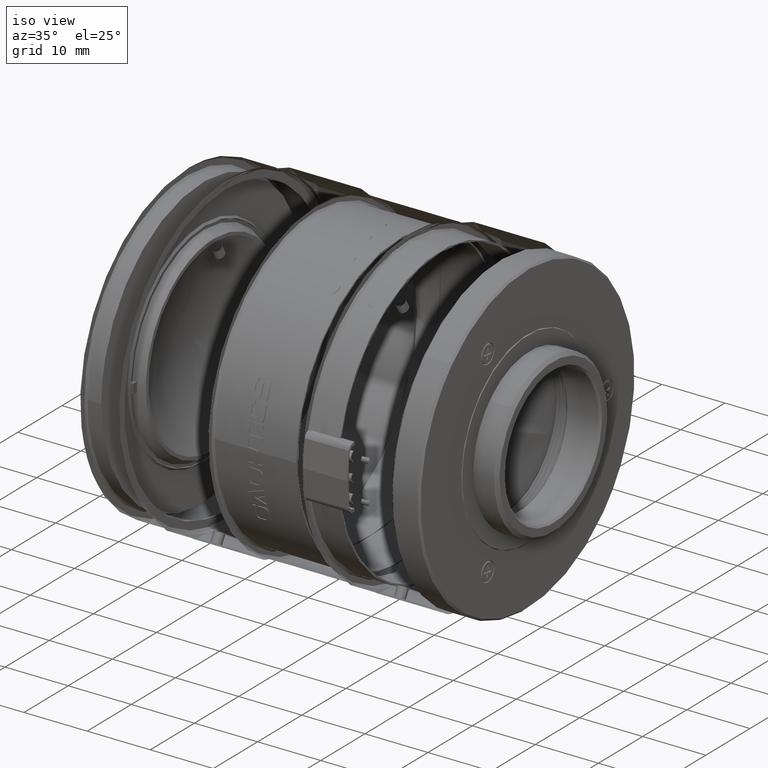
[diagram: clean part render]
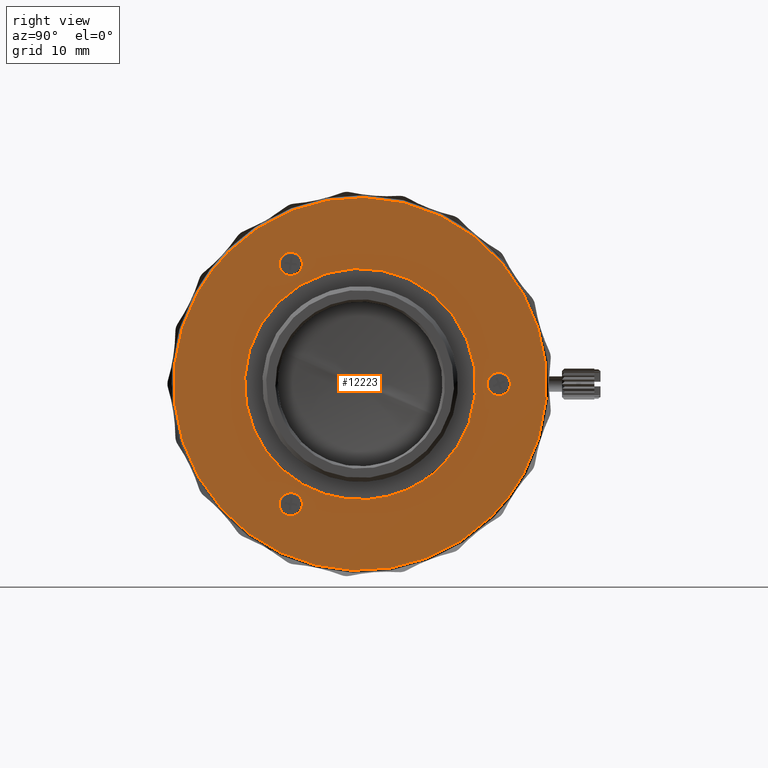
[diagram: tour spotlight — one face highlighted and labeled with its STEP entity id]
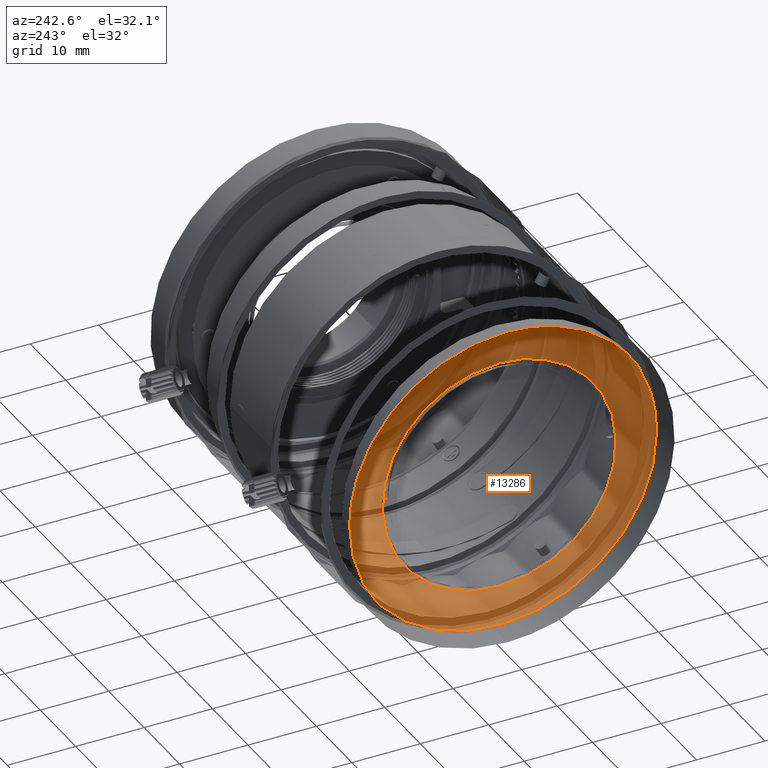
[diagram: tour spotlight — one face highlighted and labeled with its STEP entity id]
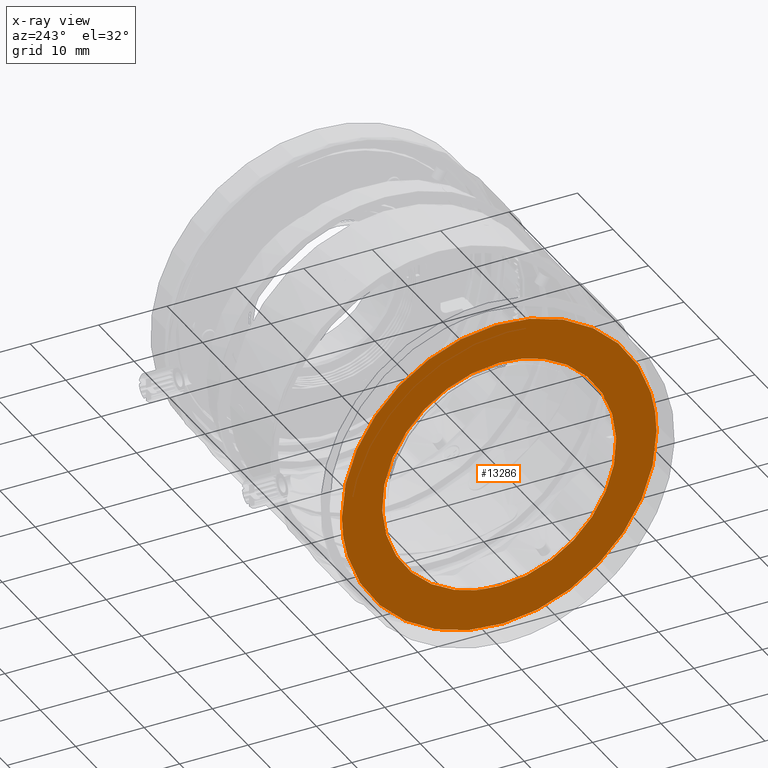
[diagram: x-ray of the same camera — body ghosted, this tour face saturated]
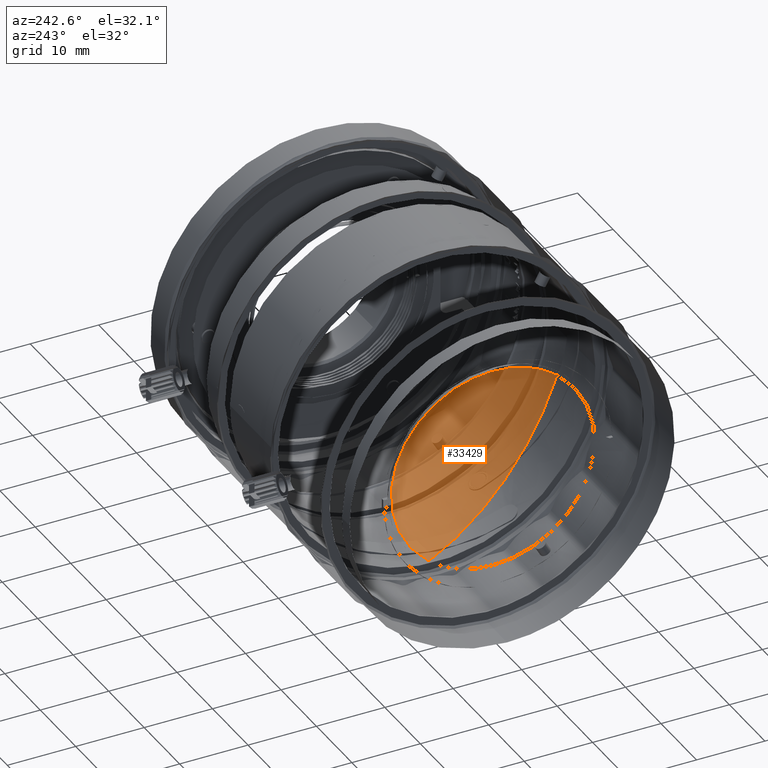
[diagram: tour spotlight — one face highlighted and labeled with its STEP entity id]
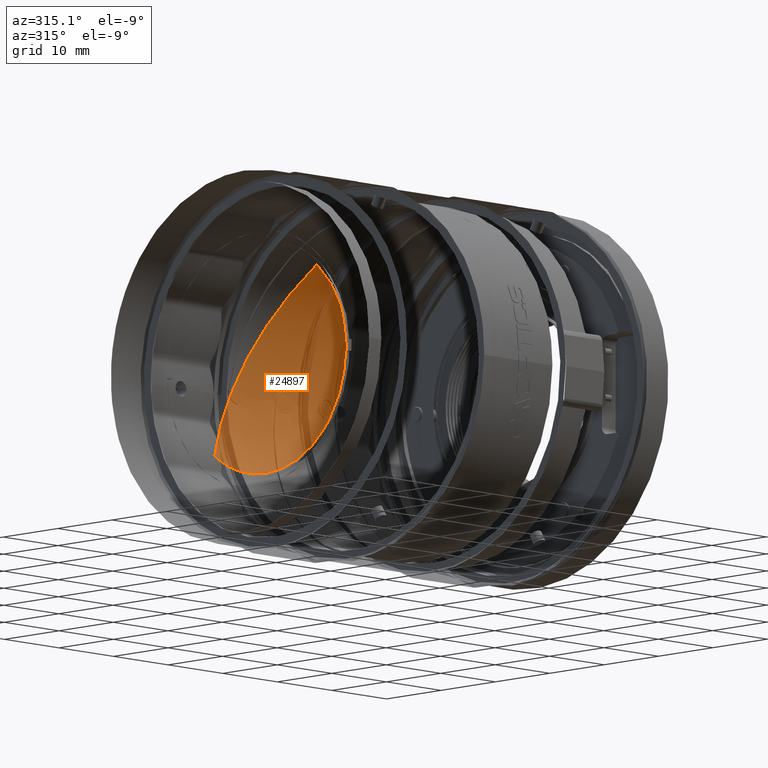
[diagram: tour spotlight — one face highlighted and labeled with its STEP entity id]
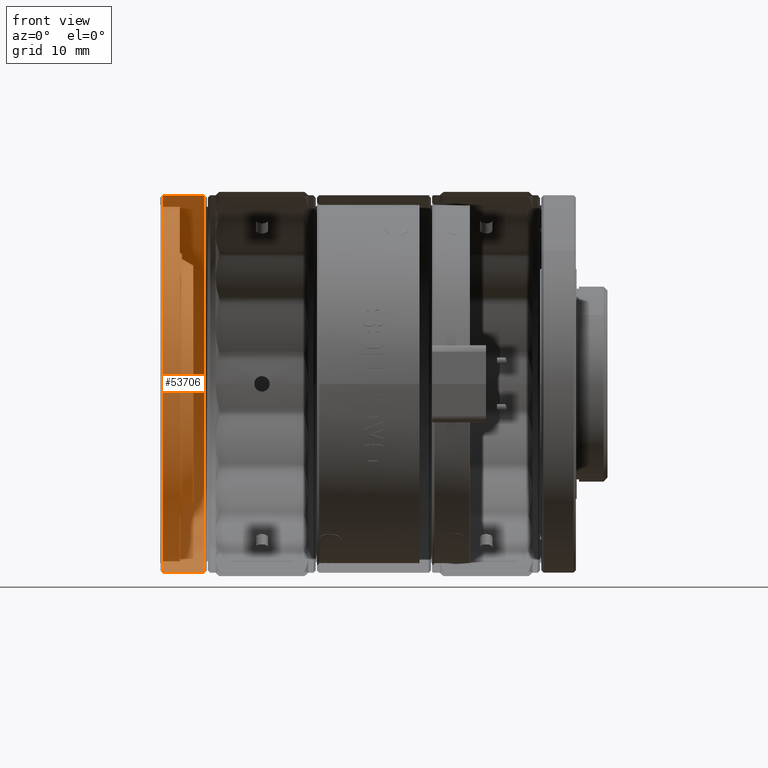
[diagram: tour spotlight — one face highlighted and labeled with its STEP entity id]
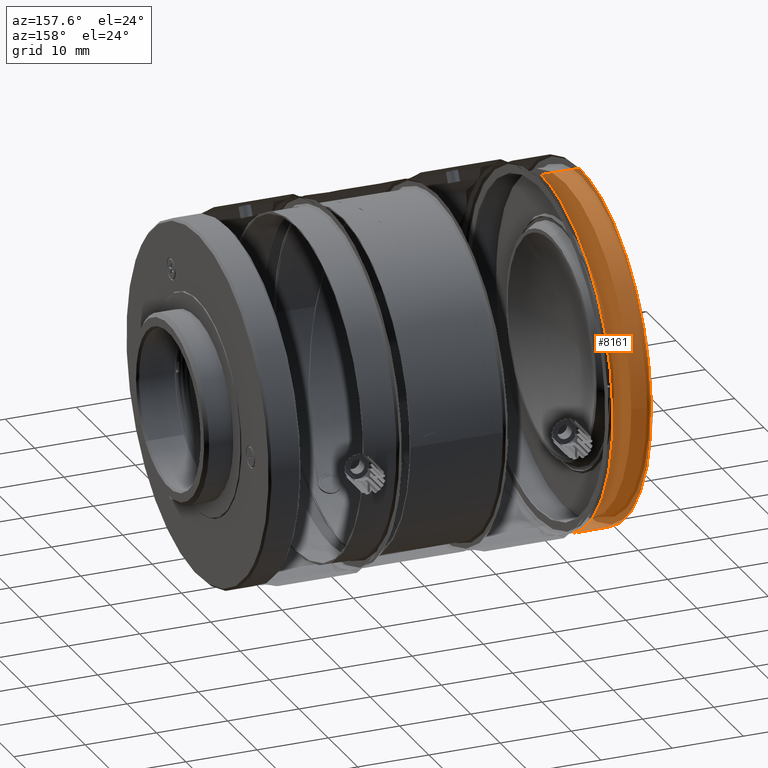
[diagram: tour spotlight — one face highlighted and labeled with its STEP entity id]
A machine part: a face-by-face anatomy tour. The part has 1184 B-rep faces; the first image is the clean iso view, then the 6 largest visible faces are spotlighted one at a time (largest first), each with its STEP entity span.

Face 1 — right view, entity #12223. In plain terms, the highlighted face is a freeform B-spline surface patch.
Definition (entity closure, byte-faithful):
#1243 = CARTESIAN_POINT ( 'NONE',  ( 47.75000000000000711, 14.61019429577712181, -3.924759922729253780 ) ) ;
#1432 = ORIENTED_EDGE ( 'NONE', *, *, #41526, .F. ) ;
#1555 = EDGE_CURVE ( 'NONE', #35013, #21153, #27306, .T. ) ;
#1583 = ORIENTED_EDGE ( 'NONE', *, *, #36207, .F. ) ;
#1727 =( BOUNDED_CURVE ( )  B_SPLINE_CURVE ( 3, ( #22337, #40267, #58141, #27037, #45258, #14086, #30877 ),
 .UNSPECIFIED., .F., .F. ) 
 B_SPLINE_CURVE_WITH_KNOTS ( ( 4, 3, 4 ),
 ( -3.141592653589795336, -1.570796326794897668, 0.0000000000000000000 ),
 .UNSPECIFIED. ) 
 CURVE ( )  GEOMETRIC_REPRESENTATION_ITEM ( )  RATIONAL_B_SPLINE_CURVE ( ( 1.000000000000000000, 0.8047378540760217192, 0.8047378540760217192, 1.000000000000000000, 0.8047378540760217192, 0.8047378540760217192, 1.000000000000000000 ) ) 
 REPRESENTATION_ITEM ( '' )  );
#3949 = FACE_BOUND ( 'NONE', #22792, .T. ) ;
#4544 = B_SPLINE_SURFACE_WITH_KNOTS ( 'NONE', 1, 1, ( 
 ( #48898, #8366 ),
 ( #52710, #8082 ) ),
 .UNSPECIFIED., .F., .F., .F.,
 ( 2, 2 ),
 ( 2, 2 ),
 ( 0.0000000000000000000, 1.000000000000000000 ),
 ( 0.0000000000000000000, 1.000000000000000000 ),
 .UNSPECIFIED. ) ;
#4717 = EDGE_LOOP ( 'NONE', ( #12887, #21499 ) ) ;
#5855 = CARTESIAN_POINT ( 'NONE',  ( 47.75000000287850099, -7.939339831255829871, -14.52779710084869969 ) ) ;
#6170 = CARTESIAN_POINT ( 'NONE',  ( 47.75000000000000000, 16.93933982723959986, -1.060660165267623967 ) ) ;
#6230 = EDGE_LOOP ( 'NONE', ( #52181, #28512 ) ) ;
#6245 = CARTESIAN_POINT ( 'NONE',  ( 47.75000000000001421, 14.99999998148445179, -1.965073948798883974 ) ) ;
#6272 = CARTESIAN_POINT ( 'NONE',  ( 47.75000000000000000, -5.818019501821017236, 14.52779711382101624 ) ) ;
#7948 =( BOUNDED_CURVE ( )  B_SPLINE_CURVE ( 3, ( #46144, #28519, #10308, #19132 ),
 .UNSPECIFIED., .F., .F. ) 
 B_SPLINE_CURVE_WITH_KNOTS ( ( 4, 4 ),
 ( -3.141592653589795336, 0.0000000000000000000 ),
 .UNSPECIFIED. ) 
 CURVE ( )  GEOMETRIC_REPRESENTATION_ITEM ( )  RATIONAL_B_SPLINE_CURVE ( ( 1.000000000000000000, 0.3333333335299311084, 0.3333333335299311084, 1.000000000000000000 ) ) 
 REPRESENTATION_ITEM ( '' )  );
#8082 = CARTESIAN_POINT ( 'NONE',  ( 47.75000000000000000, 0.0000000000000000000, 34.63465582799999254 ) ) ;
#8097 = CARTESIAN_POINT ( 'NONE',  ( 47.75000000000000711, 9.217084539344966743, 11.99611889492478056 ) ) ;
#8366 = CARTESIAN_POINT ( 'NONE',  ( 47.75000000000000000, 34.63465582799999254, 0.0000000000000000000 ) ) ;
#9789 = CARTESIAN_POINT ( 'NONE',  ( 47.74999999135521733, -8.560660171789660211, 17.27043778378966010 ) ) ;
#9820 = CARTESIAN_POINT ( 'NONE',  ( 47.74999999711839394, -7.939339819710950152, 16.64911744222175116 ) ) ;
#10067 = CARTESIAN_POINT ( 'NONE',  ( 47.74999999135521733, -9.439339828555313616, 17.27043778369955973 ) ) ;
#10308 = CARTESIAN_POINT ( 'NONE',  ( 47.74999999999992184, -10.60660171854129885, -31.81980513713768843 ) ) ;
#11427 = EDGE_CURVE ( 'NONE', #50871, #52701, #13908, .T. ) ;
#11721 = VERTEX_POINT ( 'NONE', #26771 ) ;
#12223 = ADVANCED_FACE ( 'NONE', ( #44203, #21305, #3949, #48319, #57668 ), #4544, .F. ) ;
#12887 = ORIENTED_EDGE ( 'NONE', *, *, #14228, .F. ) ;
#12968 = ORIENTED_EDGE ( 'NONE', *, *, #26872, .F. ) ;
#13529 = CARTESIAN_POINT ( 'NONE',  ( 47.75000000000000000, 19.06066016851304923, 1.060660176458955828 ) ) ;
#13883 = CARTESIAN_POINT ( 'NONE',  ( 47.74999999135521733, -10.06066017221754372, 16.64911743978245795 ) ) ;
#13908 = B_SPLINE_CURVE_WITH_KNOTS ( 'NONE', 3,
 ( #21324, #39253, #30712, #17477, #57131, #35415, #30426, #48335, #8097, #28290, #19190, #46493, #32995, #6245, #1243, #37123, #32702, #51473 ),
 .UNSPECIFIED., .F., .F.,
 ( 4, 2, 2, 2, 2, 2, 2, 2, 4 ),
 ( 0.0000000000000000000, 0.3926990816987244171, 0.7853981633974488341, 1.178097245096173307, 1.570796326794897668, 1.963495408493622030, 2.356194490192346613, 2.748893571891070753, 3.141592653589795336 ),
 .UNSPECIFIED. ) ;
#14086 = CARTESIAN_POINT ( 'NONE',  ( 47.75000000863546745, -10.68198051560944073, -16.02779709690029719 ) ) ;
#14202 = CARTESIAN_POINT ( 'NONE',  ( 47.74999999711839394, -10.06066017252928013, 14.52779708895026012 ) ) ;
#14228 = EDGE_CURVE ( 'NONE', #17811, #27340, #24884, .T. ) ;
#14752 = CARTESIAN_POINT ( 'NONE',  ( 47.75000000287850099, -10.06066017252928013, -16.64911744257529946 ) ) ;
#14932 = CARTESIAN_POINT ( 'NONE',  ( 47.75000000000000000, 17.11198409740554993, -17.11198410676480108 ) ) ;
#15054 = CARTESIAN_POINT ( 'NONE',  ( 47.74999999135521733, -10.68198051560944073, 15.14911743909970809 ) ) ;
#16117 = CARTESIAN_POINT ( 'NONE',  ( 47.75000000000000000, 21.18198051355837919, -1.060660171320298328 ) ) ;
#16662 = CARTESIAN_POINT ( 'NONE',  ( 47.74999999999995737, 17.11198410850973062, 17.11198410149027538 ) ) ;
#17477 = CARTESIAN_POINT ( 'NONE',  ( 47.74999999999997868, -3.924759830370170732, 14.61019420341804498 ) ) ;
#17808 = CARTESIAN_POINT ( 'NONE',  ( 47.75000000000000711, -7.088015893773679466, 27.13595231622632298 ) ) ;
#17811 = VERTEX_POINT ( 'NONE', #20431 ) ;
#18647 =( BOUNDED_CURVE ( )  B_SPLINE_CURVE ( 3, ( #14752, #50589, #32112, #23280 ),
 .UNSPECIFIED., .F., .F. ) 
 B_SPLINE_CURVE_WITH_KNOTS ( ( 4, 4 ),
 ( -3.141592653589795336, 0.0000000000000000000 ),
 .UNSPECIFIED. ) 
 CURVE ( )  GEOMETRIC_REPRESENTATION_ITEM ( )  RATIONAL_B_SPLINE_CURVE ( ( 1.000000000000000000, 0.3333333335299307754, 0.3333333335299307754, 1.000000000000000000 ) ) 
 REPRESENTATION_ITEM ( '' )  );
#18798 = CARTESIAN_POINT ( 'NONE',  ( 47.74999999711839394, -7.939339819710950152, 16.64911744222175116 ) ) ;
#19132 = CARTESIAN_POINT ( 'NONE',  ( 47.75000000000000000, 10.60660171481101877, -10.60660172061222184 ) ) ;
#19184 = CARTESIAN_POINT ( 'NONE',  ( 47.74999999711839394, -10.06066017252928013, 14.52779708895026012 ) ) ;
#19190 = CARTESIAN_POINT ( 'NONE',  ( 47.75000000000000711, 13.10619175517281043, 7.555743176270190986 ) ) ;
#19202 = CARTESIAN_POINT ( 'NONE',  ( 47.75000000000000000, 10.60660171481101877, -10.60660172061222184 ) ) ;
#19215 = CARTESIAN_POINT ( 'NONE',  ( 47.75000000000000000, -7.939339819089494377, 12.40647677873152688 ) ) ;
#20431 = CARTESIAN_POINT ( 'NONE',  ( 47.75000000000000000, 17.11198409740554993, -17.11198410676480108 ) ) ;
#21078 = CARTESIAN_POINT ( 'NONE',  ( 47.74999999999997868, 7.088015899339358938, 27.13595231477254899 ) ) ;
#21153 = VERTEX_POINT ( 'NONE', #18798 ) ;
#21223 = VERTEX_POINT ( 'NONE', #5855 ) ;
#21305 = FACE_BOUND ( 'NONE', #57586, .T. ) ;
#21324 = CARTESIAN_POINT ( 'NONE',  ( 47.75000000000000000, -10.60660171834656040, 10.60660171707669974 ) ) ;
#21360 = CARTESIAN_POINT ( 'NONE',  ( 47.75000000287850099, -10.06066017252928013, -16.64911744257529946 ) ) ;
#21488 =( BOUNDED_CURVE ( )  B_SPLINE_CURVE ( 3, ( #29934, #39333, #16117, #34632 ),
 .UNSPECIFIED., .F., .F. ) 
 B_SPLINE_CURVE_WITH_KNOTS ( ( 4, 4 ),
 ( -3.141592653589795336, 0.0000000000000000000 ),
 .UNSPECIFIED. ) 
 CURVE ( )  GEOMETRIC_REPRESENTATION_ITEM ( )  RATIONAL_B_SPLINE_CURVE ( ( 1.000000000000000000, 0.3333333335299309419, 0.3333333335299309419, 1.000000000000000000 ) ) 
 REPRESENTATION_ITEM ( '' )  );
#21499 = ORIENTED_EDGE ( 'NONE', *, *, #42720, .F. ) ;
#21657 =( BOUNDED_CURVE ( )  B_SPLINE_CURVE ( 3, ( #13529, #22927, #27922, #41437, #37909, #38195, #6170 ),
 .UNSPECIFIED., .F., .F. ) 
 B_SPLINE_CURVE_WITH_KNOTS ( ( 4, 3, 4 ),
 ( -3.141592653589795336, -1.570796326794897668, 0.0000000000000000000 ),
 .UNSPECIFIED. ) 
 CURVE ( )  GEOMETRIC_REPRESENTATION_ITEM ( )  RATIONAL_B_SPLINE_CURVE ( ( 1.000000000000000000, 0.8047378540760217192, 0.8047378540760217192, 1.000000000000000000, 0.8047378540760217192, 0.8047378540760217192, 1.000000000000000000 ) ) 
 REPRESENTATION_ITEM ( '' )  );
#22337 = CARTESIAN_POINT ( 'NONE',  ( 47.75000000287850099, -7.939339831255829871, -14.52779710084869969 ) ) ;
#22792 = EDGE_LOOP ( 'NONE', ( #1583, #1432 ) ) ;
#22927 = CARTESIAN_POINT ( 'NONE',  ( 47.75000000000000711, 18.43933982721033615, 1.681980515789661901 ) ) ;
#23280 = CARTESIAN_POINT ( 'NONE',  ( 47.75000000287850099, -7.939339831255829871, -14.52779710084869969 ) ) ;
#23643 = EDGE_LOOP ( 'NONE', ( #34651, #30166 ) ) ;
#24651 = ORIENTED_EDGE ( 'NONE', *, *, #42052, .F. ) ;
#24884 =( BOUNDED_CURVE ( )  B_SPLINE_CURVE ( 3, ( #14932, #56035, #41686, #37292 ),
 .UNSPECIFIED., .F., .T. ) 
 B_SPLINE_CURVE_WITH_KNOTS ( ( 4, 4 ),
 ( -3.141592653589795336, 0.0000000000000000000 ),
 .UNSPECIFIED. ) 
 CURVE ( )  GEOMETRIC_REPRESENTATION_ITEM ( )  RATIONAL_B_SPLINE_CURVE ( ( 1.000000000000000000, 0.3333333335299311084, 0.3333333335299311084, 1.000000000000000000 ) ) 
 REPRESENTATION_ITEM ( '' )  );
#26407 = CARTESIAN_POINT ( 'NONE',  ( 47.75000000000000000, -17.11198410310955254, 17.11198410106080203 ) ) ;
#26771 = CARTESIAN_POINT ( 'NONE',  ( 47.75000000000000000, 19.06066016851304923, 1.060660176458955828 ) ) ;
#26872 = EDGE_CURVE ( 'NONE', #42723, #21223, #18647, .T. ) ;
#27037 = CARTESIAN_POINT ( 'NONE',  ( 47.75000000863546035, -10.06066017221754372, -14.52779709621754556 ) ) ;
#27306 =( BOUNDED_CURVE ( )  B_SPLINE_CURVE ( 3, ( #14202, #19215, #6272, #9820 ),
 .UNSPECIFIED., .F., .T. ) 
 B_SPLINE_CURVE_WITH_KNOTS ( ( 4, 4 ),
 ( 0.0000000000000000000, 1.000000000000000000 ),
 .UNSPECIFIED. ) 
 CURVE ( )  GEOMETRIC_REPRESENTATION_ITEM ( )  RATIONAL_B_SPLINE_CURVE ( ( 1.000000000000000000, 0.3333333361336357492, 0.3333333361336357492, 1.000000000000000000 ) ) 
 REPRESENTATION_ITEM ( '' )  );
#27340 = VERTEX_POINT ( 'NONE', #26407 ) ;
#27922 = CARTESIAN_POINT ( 'NONE',  ( 47.75000000000000711, 17.56066017044468452, 1.681980515699551315 ) ) ;
#28290 = CARTESIAN_POINT ( 'NONE',  ( 47.75000000000001421, 11.99611889492478234, 9.217084539344963190 ) ) ;
#28512 = ORIENTED_EDGE ( 'NONE', *, *, #11427, .T. ) ;
#28519 = CARTESIAN_POINT ( 'NONE',  ( 47.75000000000000711, -31.81980513958379575, -10.60660171120299822 ) ) ;
#29893 = CARTESIAN_POINT ( 'NONE',  ( 47.74999999999990763, 27.13595231331877500, -7.088015904905036635 ) ) ;
#29934 = CARTESIAN_POINT ( 'NONE',  ( 47.75000000000000000, 16.93933982723959986, -1.060660165267623967 ) ) ;
#30166 = ORIENTED_EDGE ( 'NONE', *, *, #49808, .F. ) ;
#30426 = CARTESIAN_POINT ( 'NONE',  ( 47.75000000000000711, 3.924759922729262662, 14.61019429577710760 ) ) ;
#30712 = CARTESIAN_POINT ( 'NONE',  ( 47.75000000000000711, -7.555743176270236283, 13.10619175517279444 ) ) ;
#30782 = CARTESIAN_POINT ( 'NONE',  ( 47.75000000000000000, -10.60660171834656040, 10.60660171707669974 ) ) ;
#30877 = CARTESIAN_POINT ( 'NONE',  ( 47.75000000287850099, -10.06066017252928013, -16.64911744257529946 ) ) ;
#32112 = CARTESIAN_POINT ( 'NONE',  ( 47.75000000000000000, -5.818019485441621619, -16.64911743932029964 ) ) ;
#32629 = EDGE_CURVE ( 'NONE', #50871, #52701, #7948, .T. ) ;
#32702 = CARTESIAN_POINT ( 'NONE',  ( 47.75000000000001421, 11.99611889492479477, -9.217084539344954308 ) ) ;
#32995 = CARTESIAN_POINT ( 'NONE',  ( 47.75000000000000711, 14.99999998148446245, 1.965073948798883974 ) ) ;
#34632 = CARTESIAN_POINT ( 'NONE',  ( 47.75000000000000000, 19.06066016851304923, 1.060660176458955828 ) ) ;
#34651 = ORIENTED_EDGE ( 'NONE', *, *, #1555, .F. ) ;
#35013 = VERTEX_POINT ( 'NONE', #41181 ) ;
#35415 = CARTESIAN_POINT ( 'NONE',  ( 47.75000000000001421, 1.965073948798890857, 14.99999998148445712 ) ) ;
#36207 = EDGE_CURVE ( 'NONE', #58080, #11721, #21488, .T. ) ;
#36979 = CARTESIAN_POINT ( 'NONE',  ( 47.75000000000000000, 16.93933982723959986, -1.060660165267623967 ) ) ;
#37123 = CARTESIAN_POINT ( 'NONE',  ( 47.75000000000001421, 13.10619166281372117, -7.555743083911155900 ) ) ;
#37292 = CARTESIAN_POINT ( 'NONE',  ( 47.75000000000000000, -17.11198410310955254, 17.11198410106080203 ) ) ;
#37909 = CARTESIAN_POINT ( 'NONE',  ( 47.75000000000000711, 16.31801948312022787, 0.4393398278653572464 ) ) ;
#38195 = CARTESIAN_POINT ( 'NONE',  ( 47.75000000000000711, 16.31801948339056452, -0.4393398289002973245 ) ) ;
#39253 = CARTESIAN_POINT ( 'NONE',  ( 47.75000000000000000, -9.217084539345014704, 11.99611889492472727 ) ) ;
#39292 = CARTESIAN_POINT ( 'NONE',  ( 47.75000000000000000, 17.11198409740554993, -17.11198410676480108 ) ) ;
#39333 = CARTESIAN_POINT ( 'NONE',  ( 47.75000000000000000, 19.06066017105412769, -3.181980514313768715 ) ) ;
#40267 = CARTESIAN_POINT ( 'NONE',  ( 47.75000000863546745, -8.560660171789663764, -13.90647675221034163 ) ) ;
#41181 = CARTESIAN_POINT ( 'NONE',  ( 47.74999999711839394, -10.06066017252928013, 14.52779708895026012 ) ) ;
#41437 = CARTESIAN_POINT ( 'NONE',  ( 47.75000000000000000, 16.93933982678245442, 1.060660171782454420 ) ) ;
#41526 = EDGE_CURVE ( 'NONE', #11721, #58080, #21657, .T. ) ;
#41686 = CARTESIAN_POINT ( 'NONE',  ( 47.75000000000000711, -51.33595229174186159, -17.11198409403417386 ) ) ;
#41795 = CARTESIAN_POINT ( 'NONE',  ( 47.74999999711839394, -7.939339819710950152, 16.64911744222175116 ) ) ;
#42052 = EDGE_CURVE ( 'NONE', #21223, #42723, #1727, .T. ) ;
#42720 = EDGE_CURVE ( 'NONE', #27340, #17811, #50978, .T. ) ;
#42723 = VERTEX_POINT ( 'NONE', #21360 ) ;
#44203 = FACE_BOUND ( 'NONE', #23643, .T. ) ;
#45258 = CARTESIAN_POINT ( 'NONE',  ( 47.75000000863546745, -10.68198051587977382, -15.14911744013464201 ) ) ;
#46144 = CARTESIAN_POINT ( 'NONE',  ( 47.75000000000000000, -10.60660171834656040, 10.60660171707669974 ) ) ;
#46493 = CARTESIAN_POINT ( 'NONE',  ( 47.75000000000001421, 14.61019420341802544, 3.924759830370218694 ) ) ;
#47389 =( BOUNDED_CURVE ( )  B_SPLINE_CURVE ( 3, ( #41795, #9789, #10067, #13883, #49724, #15054, #19184 ),
 .UNSPECIFIED., .F., .F. ) 
 B_SPLINE_CURVE_WITH_KNOTS ( ( 4, 3, 4 ),
 ( -3.141592653589795336, -1.570796326794897668, 0.0000000000000000000 ),
 .UNSPECIFIED. ) 
 CURVE ( )  GEOMETRIC_REPRESENTATION_ITEM ( )  RATIONAL_B_SPLINE_CURVE ( ( 1.000000000000000000, 0.8047378540760217192, 0.8047378540760217192, 1.000000000000000000, 0.8047378540760217192, 0.8047378540760217192, 1.000000000000000000 ) ) 
 REPRESENTATION_ITEM ( '' )  );
#47814 = CARTESIAN_POINT ( 'NONE',  ( 47.75000000000000000, -17.11198410310955254, 17.11198410106080203 ) ) ;
#48105 = CARTESIAN_POINT ( 'NONE',  ( 47.74999999999994316, 27.13595231768010407, 7.088015888208004434 ) ) ;
#48319 = FACE_BOUND ( 'NONE', #6230, .T. ) ;
#48335 = CARTESIAN_POINT ( 'NONE',  ( 47.75000000000001421, 7.555743083911147906, 13.10619166281373182 ) ) ;
#48898 = CARTESIAN_POINT ( 'NONE',  ( 47.75000000000000000, 0.0000000000000000000, -34.63465582799999254 ) ) ;
#49724 = CARTESIAN_POINT ( 'NONE',  ( 47.74999999135521733, -10.68198051587977382, 16.02779709586535972 ) ) ;
#49808 = EDGE_CURVE ( 'NONE', #21153, #35013, #47389, .T. ) ;
#50589 = CARTESIAN_POINT ( 'NONE',  ( 47.75000000000000000, -7.939339827945871342, -18.77043778231377047 ) ) ;
#50871 = VERTEX_POINT ( 'NONE', #30782 ) ;
#50978 =( BOUNDED_CURVE ( )  B_SPLINE_CURVE ( 3, ( #47814, #17808, #21078, #16662, #48105, #29893, #39292 ),
 .UNSPECIFIED., .F., .F. ) 
 B_SPLINE_CURVE_WITH_KNOTS ( ( 4, 3, 4 ),
 ( -3.141592653589795336, -1.570796326794897668, 0.0000000000000000000 ),
 .UNSPECIFIED. ) 
 CURVE ( )  GEOMETRIC_REPRESENTATION_ITEM ( )  RATIONAL_B_SPLINE_CURVE ( ( 1.000000000000000000, 0.8047378540760217192, 0.8047378540760217192, 1.000000000000000000, 0.8047378540760217192, 0.8047378540760217192, 1.000000000000000000 ) ) 
 REPRESENTATION_ITEM ( '' )  );
#51473 = CARTESIAN_POINT ( 'NONE',  ( 47.75000000000000000, 10.60660171481101877, -10.60660172061222184 ) ) ;
#52181 = ORIENTED_EDGE ( 'NONE', *, *, #32629, .F. ) ;
#52701 = VERTEX_POINT ( 'NONE', #19202 ) ;
#52710 = CARTESIAN_POINT ( 'NONE',  ( 47.75000000000000000, -34.63465582799999254, 0.0000000000000000000 ) ) ;
#56035 = CARTESIAN_POINT ( 'NONE',  ( 47.74999999999992184, -17.11198410587329732, -51.33595228779549302 ) ) ;
#57131 = CARTESIAN_POINT ( 'NONE',  ( 47.75000000000000711, -1.965073948798891301, 14.99999998148445535 ) ) ;
#57586 = EDGE_LOOP ( 'NONE', ( #12968, #24651 ) ) ;
#57668 = FACE_OUTER_BOUND ( 'NONE', #4717, .T. ) ;
#58080 = VERTEX_POINT ( 'NONE', #36979 ) ;
#58141 = CARTESIAN_POINT ( 'NONE',  ( 47.75000000863546745, -9.439339828555317169, -13.90647675230045088 ) ) ;

Face 2 — auxiliary view, entity #13286. An x-ray twin of the same camera follows (body ghosted, this face saturated) — the face is partly hidden behind the body. In plain terms, the highlighted face is a freeform B-spline surface patch.
Definition (entity closure, byte-faithful):
#80 = CARTESIAN_POINT ( 'NONE',  ( -3.649600752999998754, -13.67557557789870870, 10.50747648684796154 ) ) ;
#971 = CARTESIAN_POINT ( 'NONE',  ( -3.649600752999999198, 22.26414678317866347, 5.964686051250673415 ) ) ;
#1551 = CARTESIAN_POINT ( 'NONE',  ( -3.649600752999998754, 17.32875243657067088, 15.19815950746132316 ) ) ;
#1612 = CARTESIAN_POINT ( 'NONE',  ( -3.649600752999999642, 13.67557545376002714, 10.50747636270932084 ) ) ;
#2413 = CARTESIAN_POINT ( 'NONE',  ( -3.649600753000000530, -20.67269497309865045, 10.19359587165337722 ) ) ;
#2714 = CARTESIAN_POINT ( 'NONE',  ( -3.649600753000000974, 11.52545920550930880, 19.96079913379201898 ) ) ;
#4048 = EDGE_CURVE ( 'NONE', #22010, #20404, #9402, .T. ) ;
#4112 = EDGE_CURVE ( 'NONE', #7474, #40040, #54219, .T. ) ;
#5395 = CARTESIAN_POINT ( 'NONE',  ( -3.649600752999999642, 22.99999999619734581, -6.289838474470160000E-09 ) ) ;
#5976 = CARTESIAN_POINT ( 'NONE',  ( -3.649600752999998754, -22.85197608038400929, 3.009468759645264058 ) ) ;
#6260 = CARTESIAN_POINT ( 'NONE',  ( -3.649600753000000086, 10.19359587165333458, 20.67269497309866821 ) ) ;
#6327 = CARTESIAN_POINT ( 'NONE',  ( -3.649600753000000086, 13.67557557789870160, -10.50747648684794910 ) ) ;
#6562 = CARTESIAN_POINT ( 'NONE',  ( -3.649600753000000086, -11.52545926757866290, 19.96079913379200477 ) ) ;
#6921 = CARTESIAN_POINT ( 'NONE',  ( -3.649600753000000086, 17.10000002066399816, -2.240184406122641469 ) ) ;
#7143 = CARTESIAN_POINT ( 'NONE',  ( -3.649600752999999642, -19.96079913379200477, 11.52545920550933367 ) ) ;
#7196 = CARTESIAN_POINT ( 'NONE',  ( -3.649600752999999198, 21.82576355778134314, -7.409842009914631156 ) ) ;
#7211 = CARTESIAN_POINT ( 'NONE',  ( -3.649600753000000086, 17.10000002066400171, 2.240184406122642802 ) ) ;
#7474 = VERTEX_POINT ( 'NONE', #33438 ) ;
#7494 = CARTESIAN_POINT ( 'NONE',  ( -3.649600752999999642, -11.52545920550929992, -19.96079913379200832 ) ) ;
#7779 = CARTESIAN_POINT ( 'NONE',  ( -3.649600752999998754, -8.613547160181386886, 14.94105847528797426 ) ) ;
#8068 = CARTESIAN_POINT ( 'NONE',  ( -3.649600752999999198, -4.474226244810616038, 16.65562151836002869 ) ) ;
#8159 = CARTESIAN_POINT ( 'NONE',  ( -3.649600752999999642, 23.27599999999999980, 23.27599999999999980 ) ) ;
#8740 = FACE_OUTER_BOUND ( 'NONE', #43156, .T. ) ;
#8926 = CARTESIAN_POINT ( 'NONE',  ( -3.649600752999999198, -10.50747648684798463, -13.67557557789867317 ) ) ;
#9359 = EDGE_CURVE ( 'NONE', #40040, #7474, #26845, .T. ) ;
#9402 = B_SPLINE_CURVE_WITH_KNOTS ( 'NONE', 3,
 ( #47738, #52119, #24510, #25393, #38932, #37764, #55930, #47148, #11891, #33343, #51541, #7494, #29818, #29523, #28936, #43326, #42729, #38058, #51246, #29233, #11020, #47444, #20412, #11307, #34516, #38345, #46859, #42154, #43029, #7196, #20705, #38631, #52412, #15699 ),
 .UNSPECIFIED., .F., .F.,
 ( 4, 2, 2, 2, 2, 2, 2, 2, 2, 2, 2, 2, 2, 2, 2, 2, 4 ),
 ( 0.0000000000000000000, 0.1963495408493620697, 0.3926990816987243060, 0.5890486225480865423, 0.7853981633974488341, 0.9817477042468110149, 1.178097245096173529, 1.374446785945536043, 1.570796326794898334, 1.767145867644260848, 1.963495408493622696, 2.159844949342985210, 2.356194490192347057, 2.552544031041708905, 2.748893571891071197, 2.945243112740433045, 3.141592653589795336 ),
 .UNSPECIFIED. ) ;
#10746 = CARTESIAN_POINT ( 'NONE',  ( -3.649600753000000974, 4.474226244810603603, -16.65562151836002869 ) ) ;
#11020 = CARTESIAN_POINT ( 'NONE',  ( -3.649600752999998754, 7.409842009914619609, -21.82576355778133959 ) ) ;
#11258 = CARTESIAN_POINT ( 'NONE',  ( -3.649600752999998754, -5.964686051250681409, 22.26414678317866347 ) ) ;
#11307 = CARTESIAN_POINT ( 'NONE',  ( -3.649600752999999198, 14.03077146550933207, -18.28680299318399349 ) ) ;
#11891 = CARTESIAN_POINT ( 'NONE',  ( -3.649600752999999198, -17.32875243657067799, -15.19815950746132138 ) ) ;
#12325 = ORIENTED_EDGE ( 'NONE', *, *, #4112, .T. ) ;
#12836 = B_SPLINE_SURFACE_WITH_KNOTS ( 'NONE', 1, 1, ( 
 ( #53072, #8159 ),
 ( #39602, #41244 ) ),
 .UNSPECIFIED., .F., .F., .F.,
 ( 2, 2 ),
 ( 2, 2 ),
 ( 0.0000000000000000000, 1.000000000000000000 ),
 ( 0.0000000000000000000, 1.000000000000000000 ),
 .UNSPECIFIED. ) ;
#13033 = CARTESIAN_POINT ( 'NONE',  ( -3.649600753000000086, -17.10000002066399460, 2.240184406122641469 ) ) ;
#13222 = CARTESIAN_POINT ( 'NONE',  ( -3.649600752999999642, -22.99999999619734581, -1.376828826539356163E-09 ) ) ;
#13286 = ADVANCED_FACE ( 'NONE', ( #35188, #8740 ), #12836, .T. ) ;
#15363 = CARTESIAN_POINT ( 'NONE',  ( -3.649600752999998754, -15.19815950746130717, 17.32875243657069930 ) ) ;
#15645 = CARTESIAN_POINT ( 'NONE',  ( -3.649600753000000086, 14.03077152757869150, 18.28680299318397573 ) ) ;
#15699 = CARTESIAN_POINT ( 'NONE',  ( -3.649600752999999642, 22.99999999619734581, -6.289838474470160000E-09 ) ) ;
#16244 = CARTESIAN_POINT ( 'NONE',  ( -3.649600753000000530, 20.67269497309866821, 10.19359587165334347 ) ) ;
#19553 = CARTESIAN_POINT ( 'NONE',  ( -3.649600753000000086, 16.65562139422134180, -4.474226244810604491 ) ) ;
#19774 = CARTESIAN_POINT ( 'NONE',  ( -3.649600753000000086, 15.19815950746132494, 17.32875243657068154 ) ) ;
#20069 = CARTESIAN_POINT ( 'NONE',  ( -3.649600752999999198, 18.28680299318398639, 14.03077146550933740 ) ) ;
#20360 = CARTESIAN_POINT ( 'NONE',  ( -3.649600753000000530, -22.99999998859200900, 1.506556727690601782 ) ) ;
#20404 = VERTEX_POINT ( 'NONE', #35988 ) ;
#20412 = CARTESIAN_POINT ( 'NONE',  ( -3.649600753000000086, 11.52545926757866290, -19.96079913379200832 ) ) ;
#20658 = CARTESIAN_POINT ( 'NONE',  ( -3.649600753000000086, 1.506556727690648412, 22.99999998859200190 ) ) ;
#20705 = CARTESIAN_POINT ( 'NONE',  ( -3.649600752999998754, 22.26414684524798915, -5.964686051250732035 ) ) ;
#20723 = CARTESIAN_POINT ( 'NONE',  ( -3.649600753000000086, 4.474226244810659558, 16.65562139422134180 ) ) ;
#21857 = CARTESIAN_POINT ( 'NONE',  ( -3.649600753000000086, -17.10000002066400171, -2.240184406122642358 ) ) ;
#22010 = VERTEX_POINT ( 'NONE', #13222 ) ;
#22422 = CARTESIAN_POINT ( 'NONE',  ( -3.649600752999999642, -4.676358170149549794E-09, -17.10000000688800270 ) ) ;
#24177 = CARTESIAN_POINT ( 'NONE',  ( -3.649600752999999642, 21.82576355778133603, 7.409842009914663130 ) ) ;
#24510 = CARTESIAN_POINT ( 'NONE',  ( -3.649600752999999198, -22.85197614245333853, -3.009468759645328895 ) ) ;
#25050 = CARTESIAN_POINT ( 'NONE',  ( -3.649600752999999642, -17.32875243657070286, 15.19815950746131072 ) ) ;
#25393 = CARTESIAN_POINT ( 'NONE',  ( -3.649600752999998754, -22.26414678317865281, -5.964686051250671639 ) ) ;
#26845 = B_SPLINE_CURVE_WITH_KNOTS ( 'NONE', 3,
 ( #33356, #28658, #20723, #37498, #51261, #1612, #50977, #46577, #7211, #6921, #19553, #55366, #6327, #33073, #47162, #10746, #34241, #29537 ),
 .UNSPECIFIED., .F., .F.,
 ( 4, 2, 2, 2, 2, 2, 2, 2, 4 ),
 ( 0.0000000000000000000, 0.3926990816987245281, 0.7853981633974488341, 1.178097245096173307, 1.570796326794897668, 1.963495408493622030, 2.356194490192346613, 2.748893571891071197, 3.141592653589795336 ),
 .UNSPECIFIED. ) ;
#27153 = CARTESIAN_POINT ( 'NONE',  ( -3.649600753000000530, 22.99999998859200900, 1.506556727690669062 ) ) ;
#27902 = ORIENTED_EDGE ( 'NONE', *, *, #9359, .T. ) ;
#28658 = CARTESIAN_POINT ( 'NONE',  ( -3.649600753000000530, 2.240184406122672112, 17.10000002066399816 ) ) ;
#28936 = CARTESIAN_POINT ( 'NONE',  ( -3.649600752999999198, -5.964686051250675192, -22.26414684524800336 ) ) ;
#29233 = CARTESIAN_POINT ( 'NONE',  ( -3.649600752999999198, 5.964686051250678744, -22.26414678317866347 ) ) ;
#29523 = CARTESIAN_POINT ( 'NONE',  ( -3.649600753000000086, -7.409842009914663130, -21.82576355778134314 ) ) ;
#29537 = CARTESIAN_POINT ( 'NONE',  ( -3.649600752999999642, -4.676358170149549794E-09, -17.10000000688800270 ) ) ;
#29818 = CARTESIAN_POINT ( 'NONE',  ( -3.649600753000000086, -10.19359587165334524, -20.67269497309866466 ) ) ;
#30388 = CARTESIAN_POINT ( 'NONE',  ( -3.649600752999998754, -16.65562151836000737, -4.474226244810646236 ) ) ;
#30677 = CARTESIAN_POINT ( 'NONE',  ( -3.649600752999999198, -10.50747636270929064, 13.67557545376004313 ) ) ;
#33073 = CARTESIAN_POINT ( 'NONE',  ( -3.649600753000000974, 10.50747636270929597, -13.67557545376005557 ) ) ;
#33343 = CARTESIAN_POINT ( 'NONE',  ( -3.649600752999999642, -15.19815950746132671, -17.32875243657068154 ) ) ;
#33356 = CARTESIAN_POINT ( 'NONE',  ( -3.649600752999999642, -1.023642301470563867E-09, 17.10000000688800270 ) ) ;
#33438 = CARTESIAN_POINT ( 'NONE',  ( -3.649600752999999642, -4.676358170149549794E-09, -17.10000000688800270 ) ) ;
#34171 = CARTESIAN_POINT ( 'NONE',  ( -3.649600752999999198, -22.26414684524798915, 5.964686051250733811 ) ) ;
#34241 = CARTESIAN_POINT ( 'NONE',  ( -3.649600753000000086, 2.240184406122565086, -17.10000002066399816 ) ) ;
#34516 = CARTESIAN_POINT ( 'NONE',  ( -3.649600752999999642, 15.19815950746130184, -17.32875243657068864 ) ) ;
#35089 = CARTESIAN_POINT ( 'NONE',  ( -3.649600752999999642, -14.94105859942663983, 8.613547160181397544 ) ) ;
#35188 = FACE_BOUND ( 'NONE', #45483, .T. ) ;
#35314 = B_SPLINE_CURVE_WITH_KNOTS ( 'NONE', 3,
 ( #5395, #27153, #41240, #971, #24177, #16244, #41817, #20069, #1551, #19774, #15645, #2714, #6260, #42680, #38582, #47095, #20658, #38006, #51197, #11258, #42111, #52068, #6562, #42969, #15363, #25050, #55876, #7143, #2413, #56466, #34171, #5976, #20360, #50912 ),
 .UNSPECIFIED., .F., .F.,
 ( 4, 2, 2, 2, 2, 2, 2, 2, 2, 2, 2, 2, 2, 2, 2, 2, 4 ),
 ( 0.0000000000000000000, 0.1963495408493621530, 0.3926990816987245281, 0.5890486225480867644, 0.7853981633974491672, 0.9817477042468113480, 1.178097245096173529, 1.374446785945535598, 1.570796326794897668, 1.767145867644259960, 1.963495408493622030, 2.159844949342984322, 2.356194490192346169, 2.552544031041708461, 2.748893571891070753, 2.945243112740432601, 3.141592653589795336 ),
 .UNSPECIFIED. ) ;
#35950 = CARTESIAN_POINT ( 'NONE',  ( -3.649600753000000086, -2.240184406122565086, 17.10000002066399816 ) ) ;
#35988 = CARTESIAN_POINT ( 'NONE',  ( -3.649600752999999642, 22.99999999619734581, -6.289838474470160000E-09 ) ) ;
#37498 = CARTESIAN_POINT ( 'NONE',  ( -3.649600752999999642, 8.613547160181342477, 14.94105859942666648 ) ) ;
#37764 = CARTESIAN_POINT ( 'NONE',  ( -3.649600752999999642, -20.67269497309865756, -10.19359587165334524 ) ) ;
#38006 = CARTESIAN_POINT ( 'NONE',  ( -3.649600753000000530, -1.506556727690650632, 22.99999998859200545 ) ) ;
#38058 = CARTESIAN_POINT ( 'NONE',  ( -3.649600753000000086, 1.506556727690652631, -22.99999998859200190 ) ) ;
#38345 = CARTESIAN_POINT ( 'NONE',  ( -3.649600753000000530, 17.32875243657069930, -15.19815950746131250 ) ) ;
#38582 = CARTESIAN_POINT ( 'NONE',  ( -3.649600752999999198, 5.964686051250677856, 22.26414684524800336 ) ) ;
#38631 = CARTESIAN_POINT ( 'NONE',  ( -3.649600752999998754, 22.85197608038401995, -3.009468759645267610 ) ) ;
#38932 = CARTESIAN_POINT ( 'NONE',  ( -3.649600752999998754, -21.82576355778132537, -7.409842009914652472 ) ) ;
#39602 = CARTESIAN_POINT ( 'NONE',  ( -3.649600752999999642, -23.27599999999999980, -23.27599999999999980 ) ) ;
#39782 = CARTESIAN_POINT ( 'NONE',  ( -3.649600753000000086, -16.65562139422135957, 4.474226244810604491 ) ) ;
#40040 = VERTEX_POINT ( 'NONE', #42427 ) ;
#40062 = CARTESIAN_POINT ( 'NONE',  ( -3.649600753000000530, -13.67557545376001649, -10.50747636270932794 ) ) ;
#41240 = CARTESIAN_POINT ( 'NONE',  ( -3.649600753000000530, 22.85197614245334563, 3.009468759645331115 ) ) ;
#41244 = CARTESIAN_POINT ( 'NONE',  ( -3.649600752999999642, 23.27599999999999980, -23.27599999999999980 ) ) ;
#41817 = CARTESIAN_POINT ( 'NONE',  ( -3.649600752999999642, 19.96079913379200832, 11.52545926757865757 ) ) ;
#42111 = CARTESIAN_POINT ( 'NONE',  ( -3.649600753000000086, -7.409842009914630268, 21.82576355778135380 ) ) ;
#42154 = CARTESIAN_POINT ( 'NONE',  ( -3.649600752999999642, 19.96079913379200477, -11.52545920550933900 ) ) ;
#42427 = CARTESIAN_POINT ( 'NONE',  ( -3.649600752999999642, -1.023642301470563867E-09, 17.10000000688800270 ) ) ;
#42680 = CARTESIAN_POINT ( 'NONE',  ( -3.649600752999998754, 7.409842009914660466, 21.82576355778133603 ) ) ;
#42729 = CARTESIAN_POINT ( 'NONE',  ( -3.649600753000000086, -1.506556727690651298, -22.99999998859200190 ) ) ;
#42969 = CARTESIAN_POINT ( 'NONE',  ( -3.649600752999998754, -14.03077146550933385, 18.28680299318399349 ) ) ;
#43029 = CARTESIAN_POINT ( 'NONE',  ( -3.649600752999999198, 20.67269497309865045, -10.19359587165336656 ) ) ;
#43156 = EDGE_LOOP ( 'NONE', ( #47445, #51048 ) ) ;
#43326 = CARTESIAN_POINT ( 'NONE',  ( -3.649600752999999198, -3.009468759645322677, -22.85197608038400219 ) ) ;
#43907 = CARTESIAN_POINT ( 'NONE',  ( -3.649600753000000530, -2.240184406122672112, -17.10000002066399460 ) ) ;
#45483 = EDGE_LOOP ( 'NONE', ( #12325, #27902 ) ) ;
#46577 = CARTESIAN_POINT ( 'NONE',  ( -3.649600752999999642, 16.65562151836000027, 4.474226244810660447 ) ) ;
#46859 = CARTESIAN_POINT ( 'NONE',  ( -3.649600753000000086, 18.28680299318399349, -14.03077152757866308 ) ) ;
#47095 = CARTESIAN_POINT ( 'NONE',  ( -3.649600753000000530, 3.009468759645327118, 22.85197608038401640 ) ) ;
#47148 = CARTESIAN_POINT ( 'NONE',  ( -3.649600753000000530, -18.28680299318399349, -14.03077146550934451 ) ) ;
#47162 = CARTESIAN_POINT ( 'NONE',  ( -3.649600752999999642, 8.613547160181402873, -14.94105847528797248 ) ) ;
#47444 = CARTESIAN_POINT ( 'NONE',  ( -3.649600752999999642, 10.19359587165338077, -20.67269497309865045 ) ) ;
#47445 = ORIENTED_EDGE ( 'NONE', *, *, #50187, .T. ) ;
#47738 = CARTESIAN_POINT ( 'NONE',  ( -3.649600752999999642, -22.99999999619734581, -1.376828826539356163E-09 ) ) ;
#49154 = CARTESIAN_POINT ( 'NONE',  ( -3.649600753000000530, -4.474226244810659558, -16.65562139422133114 ) ) ;
#50187 = EDGE_CURVE ( 'NONE', #20404, #22010, #35314, .T. ) ;
#50912 = CARTESIAN_POINT ( 'NONE',  ( -3.649600752999999642, -22.99999999619734581, -1.376828826539356163E-09 ) ) ;
#50977 = CARTESIAN_POINT ( 'NONE',  ( -3.649600753000000530, 14.94105847528799735, 8.613547160181340701 ) ) ;
#51048 = ORIENTED_EDGE ( 'NONE', *, *, #4048, .T. ) ;
#51197 = CARTESIAN_POINT ( 'NONE',  ( -3.649600752999999198, -3.009468759645317792, 22.85197614245333853 ) ) ;
#51246 = CARTESIAN_POINT ( 'NONE',  ( -3.649600752999998754, 3.009468759645315572, -22.85197614245334208 ) ) ;
#51261 = CARTESIAN_POINT ( 'NONE',  ( -3.649600752999999198, 10.50747648684797575, 13.67557557789867850 ) ) ;
#51541 = CARTESIAN_POINT ( 'NONE',  ( -3.649600753000000086, -14.03077152757869683, -18.28680299318397573 ) ) ;
#52068 = CARTESIAN_POINT ( 'NONE',  ( -3.649600752999999642, -10.19359587165337722, 20.67269497309865045 ) ) ;
#52119 = CARTESIAN_POINT ( 'NONE',  ( -3.649600753000000086, -22.99999998859200545, -1.506556727690669506 ) ) ;
#52412 = CARTESIAN_POINT ( 'NONE',  ( -3.649600752999999642, 22.99999998859200900, -1.506556727690598896 ) ) ;
#52694 = CARTESIAN_POINT ( 'NONE',  ( -3.649600752999999642, -1.023642301470563867E-09, 17.10000000688800270 ) ) ;
#53072 = CARTESIAN_POINT ( 'NONE',  ( -3.649600752999999642, -23.27599999999999980, 23.27599999999999980 ) ) ;
#53265 = CARTESIAN_POINT ( 'NONE',  ( -3.649600752999999642, -14.94105847528799913, -8.613547160181354911 ) ) ;
#54219 = B_SPLINE_CURVE_WITH_KNOTS ( 'NONE', 3,
 ( #22422, #43907, #49154, #57097, #8926, #40062, #53265, #30388, #21857, #13033, #39782, #35089, #80, #30677, #7779, #8068, #35950, #52694 ),
 .UNSPECIFIED., .F., .F.,
 ( 4, 2, 2, 2, 2, 2, 2, 2, 4 ),
 ( 0.0000000000000000000, 0.3926990816987245281, 0.7853981633974488341, 1.178097245096173307, 1.570796326794897668, 1.963495408493622030, 2.356194490192346613, 2.748893571891071197, 3.141592653589795336 ),
 .UNSPECIFIED. ) ;
#55366 = CARTESIAN_POINT ( 'NONE',  ( -3.649600753000000086, 14.94105859942664694, -8.613547160181393991 ) ) ;
#55876 = CARTESIAN_POINT ( 'NONE',  ( -3.649600752999999642, -18.28680299318399705, 14.03077152757866486 ) ) ;
#55930 = CARTESIAN_POINT ( 'NONE',  ( -3.649600753000000086, -19.96079913379200832, -11.52545926757865935 ) ) ;
#56466 = CARTESIAN_POINT ( 'NONE',  ( -3.649600752999999642, -21.82576355778134669, 7.409842009914631156 ) ) ;
#57097 = CARTESIAN_POINT ( 'NONE',  ( -3.649600753000000086, -8.613547160181342477, -14.94105859942667003 ) ) ;

Face 3 — auxiliary view, entity #33429. In plain terms, the highlighted face is a freeform B-spline surface patch.
Definition (entity closure, byte-faithful):
#1046 = CARTESIAN_POINT ( 'NONE',  ( -4.074352847000000999, 22.22100962400000768, 4.951127774000002368 ) ) ;
#2943 =( BOUNDED_CURVE ( )  B_SPLINE_CURVE ( 3, ( #40302, #22943, #8867, #50248 ),
 .UNSPECIFIED., .F., .F. ) 
 B_SPLINE_CURVE_WITH_KNOTS ( ( 4, 4 ),
 ( 0.0000000000000000000, 1.000000000000000000 ),
 .UNSPECIFIED. ) 
 CURVE ( )  GEOMETRIC_REPRESENTATION_ITEM ( )  RATIONAL_B_SPLINE_CURVE ( ( 1.000000000000000000, 0.3333333333333329818, 0.3333333333333329818, 1.000000000000000000 ) ) 
 REPRESENTATION_ITEM ( '' )  );
#3279 = CARTESIAN_POINT ( 'NONE',  ( -5.184200753000000716, 0.0000000000000000000, 0.0000000000000000000 ) ) ;
#4204 = CARTESIAN_POINT ( 'NONE',  ( -5.184200752999997164, -3.250498644000001658, 3.996016236000001332 ) ) ;
#4935 = CARTESIAN_POINT ( 'NONE',  ( -5.184200752999997164, 3.250498644000001658, -3.996016236000001332 ) ) ;
#8531 =( BOUNDED_CURVE ( )  B_SPLINE_CURVE ( 3, ( #12457, #4204, #30378, #40351 ),
 .UNSPECIFIED., .F., .T. ) 
 B_SPLINE_CURVE_WITH_KNOTS ( ( 4, 4 ),
 ( 0.0000000000000000000, 3.141592653589795336 ),
 .UNSPECIFIED. ) 
 CURVE ( )  GEOMETRIC_REPRESENTATION_ITEM ( )  RATIONAL_B_SPLINE_CURVE ( ( 1.000000000000000000, 0.9843420425973059551, 0.9843420425973059551, 1.000000000000000000 ) ) 
 REPRESENTATION_ITEM ( '' )  );
#8867 = CARTESIAN_POINT ( 'NONE',  ( -1.906790888999999378, 13.67301217900000587, 30.26990820900002888 ) ) ;
#9872 = CARTESIAN_POINT ( 'NONE',  ( -5.184200752999992723, 11.24253111700000218, 2.504981052000001984 ) ) ;
#12457 = CARTESIAN_POINT ( 'NONE',  ( -5.184200753000000716, 0.0000000000000000000, 0.0000000000000000000 ) ) ;
#14553 = CARTESIAN_POINT ( 'NONE',  ( -1.906790888999999822, -9.373360848000000800, 11.52318651400000071 ) ) ;
#16809 = EDGE_CURVE ( 'NONE', #28048, #39279, #8531, .T. ) ;
#18412 = CARTESIAN_POINT ( 'NONE',  ( -5.184200753000000716, 0.0000000000000000000, 0.0000000000000000000 ) ) ;
#20172 = VERTEX_POINT ( 'NONE', #35555 ) ;
#21766 = CARTESIAN_POINT ( 'NONE',  ( -1.906790888999999822, 9.373360850604269601, -11.52318651510134018 ) ) ;
#22076 = ORIENTED_EDGE ( 'NONE', *, *, #43812, .T. ) ;
#22804 = CARTESIAN_POINT ( 'NONE',  ( -5.184200752999999828, 0.0000000000000000000, 0.0000000000000000000 ) ) ;
#22943 = CARTESIAN_POINT ( 'NONE',  ( -1.906790888999999378, 32.41973387499999859, 7.223535182000002663 ) ) ;
#23952 = CARTESIAN_POINT ( 'NONE',  ( -1.906790888999999156, 13.67301217900000587, 30.26990820900002888 ) ) ;
#26280 = EDGE_CURVE ( 'NONE', #20172, #28048, #30649, .T. ) ;
#28048 = VERTEX_POINT ( 'NONE', #47301 ) ;
#30378 = CARTESIAN_POINT ( 'NONE',  ( -4.074352847000000111, -6.424653034000001206, 7.898178295000002791 ) ) ;
#30649 =( BOUNDED_CURVE ( )  B_SPLINE_CURVE ( 3, ( #21766, #36084, #4935, #3279 ),
 .UNSPECIFIED., .F., .F. ) 
 B_SPLINE_CURVE_WITH_KNOTS ( ( 4, 4 ),
 ( 0.0000000000000000000, 0.4343220527069445169 ),
 .UNSPECIFIED. ) 
 CURVE ( )  GEOMETRIC_REPRESENTATION_ITEM ( )  RATIONAL_B_SPLINE_CURVE ( ( 1.000000000000000000, 0.9843420425973059551, 0.9843420425973059551, 1.000000000000000000 ) ) 
 REPRESENTATION_ITEM ( '' )  );
#31921 = FACE_OUTER_BOUND ( 'NONE', #39642, .T. ) ;
#32205 = CARTESIAN_POINT ( 'NONE',  ( -5.184200752999998052, -3.250498644000002102, 3.996016236000001332 ) ) ;
#32497 = CARTESIAN_POINT ( 'NONE',  ( -4.074352847000000999, -6.424653034000002094, 7.898178295000001903 ) ) ;
#32839 = ORIENTED_EDGE ( 'NONE', *, *, #26280, .F. ) ;
#33429 = ADVANCED_FACE ( 'NONE', ( #31921 ), #48436, .T. ) ;
#35555 = CARTESIAN_POINT ( 'NONE',  ( -1.906790888999999822, 9.373360850604269601, -11.52318651510134018 ) ) ;
#36084 = CARTESIAN_POINT ( 'NONE',  ( -4.074352847000000111, 6.424653034000001206, -7.898178295000002791 ) ) ;
#36914 = CARTESIAN_POINT ( 'NONE',  ( -5.184200752999999828, 0.0000000000000000000, 0.0000000000000000000 ) ) ;
#38473 = CARTESIAN_POINT ( 'NONE',  ( -1.906790888999999822, -9.373360850604269601, 11.52318651510134018 ) ) ;
#39279 = VERTEX_POINT ( 'NONE', #38473 ) ;
#39642 = EDGE_LOOP ( 'NONE', ( #32839, #22076, #46284 ) ) ;
#40302 = CARTESIAN_POINT ( 'NONE',  ( -1.906790888999999822, 9.373360850604269601, -11.52318651510134018 ) ) ;
#40351 = CARTESIAN_POINT ( 'NONE',  ( -1.906790888999999822, -9.373360850604269601, 11.52318651510134018 ) ) ;
#40732 = CARTESIAN_POINT ( 'NONE',  ( -1.906790888999999822, 9.373360848000000800, -11.52318651400000071 ) ) ;
#41883 = CARTESIAN_POINT ( 'NONE',  ( -5.184200752999998052, 3.250498644000002102, -3.996016236000001332 ) ) ;
#43812 = EDGE_CURVE ( 'NONE', #20172, #39279, #2943, .T. ) ;
#46284 = ORIENTED_EDGE ( 'NONE', *, *, #16809, .F. ) ;
#47301 = CARTESIAN_POINT ( 'NONE',  ( -5.184200753000000716, 0.0000000000000000000, 0.0000000000000000000 ) ) ;
#48436 =( BOUNDED_SURFACE ( )  B_SPLINE_SURFACE ( 3, 3, ( 
 ( #14553, #23952, #50689, #40732 ),
 ( #32497, #50103, #1046, #50390 ),
 ( #32205, #55077, #9872, #41883 ),
 ( #18412, #22804, #36914, #54493 ) ),
 .UNSPECIFIED., .F., .F., .F. ) 
 B_SPLINE_SURFACE_WITH_KNOTS ( ( 4, 4 ),
 ( 4, 4 ),
 ( 0.0000000000000000000, 1.000000000000000000 ),
 ( 0.0000000000000000000, 1.000000000000000000 ),
 .UNSPECIFIED. ) 
 GEOMETRIC_REPRESENTATION_ITEM ( )  RATIONAL_B_SPLINE_SURFACE ( (
 ( 1.000000000000000000, 0.3333333333333329818, 0.3333333333333329818, 1.000000000000000000),
 ( 0.9843420425973059551, 0.3281140141991020220, 0.3281140141991020220, 0.9843420425973059551),
 ( 0.9843420425973059551, 0.3281140141991020220, 0.3281140141991020220, 0.9843420425973059551),
 ( 1.000000000000000000, 0.3333333333333329818, 0.3333333333333329818, 1.000000000000000000) ) ) 
 REPRESENTATION_ITEM ( '' )  SURFACE ( )  );
#50103 = CARTESIAN_POINT ( 'NONE',  ( -4.074352847000000999, 9.371703555000001629, 20.74748436400001950 ) ) ;
#50248 = CARTESIAN_POINT ( 'NONE',  ( -1.906790888999999822, -9.373360850604269601, 11.52318651510134018 ) ) ;
#50390 = CARTESIAN_POINT ( 'NONE',  ( -4.074352847000000999, 6.424653034000002094, -7.898178295000001903 ) ) ;
#50689 = CARTESIAN_POINT ( 'NONE',  ( -1.906790888999999156, 32.41973387499999859, 7.223535182000002663 ) ) ;
#54493 = CARTESIAN_POINT ( 'NONE',  ( -5.184200753000000716, 0.0000000000000000000, 0.0000000000000000000 ) ) ;
#55077 = CARTESIAN_POINT ( 'NONE',  ( -5.184200752999992723, 4.741533829000005085, 10.49701352499999985 ) ) ;

Face 4 — auxiliary view, entity #24897. In plain terms, the highlighted face is a freeform B-spline surface patch.
Definition (entity closure, byte-faithful):
#370 = EDGE_LOOP ( 'NONE', ( #26678, #9719, #45396 ) ) ;
#2297 = CARTESIAN_POINT ( 'NONE',  ( -5.184200752999992723, -4.741533829000005085, -10.49701352499999985 ) ) ;
#3279 = CARTESIAN_POINT ( 'NONE',  ( -5.184200753000000716, 0.0000000000000000000, 0.0000000000000000000 ) ) ;
#4204 = CARTESIAN_POINT ( 'NONE',  ( -5.184200752999997164, -3.250498644000001658, 3.996016236000001332 ) ) ;
#4935 = CARTESIAN_POINT ( 'NONE',  ( -5.184200752999997164, 3.250498644000001658, -3.996016236000001332 ) ) ;
#6301 = CARTESIAN_POINT ( 'NONE',  ( -1.906790888999999378, -32.41973387499999859, -7.223535182000002663 ) ) ;
#8531 =( BOUNDED_CURVE ( )  B_SPLINE_CURVE ( 3, ( #12457, #4204, #30378, #40351 ),
 .UNSPECIFIED., .F., .T. ) 
 B_SPLINE_CURVE_WITH_KNOTS ( ( 4, 4 ),
 ( 0.0000000000000000000, 3.141592653589795336 ),
 .UNSPECIFIED. ) 
 CURVE ( )  GEOMETRIC_REPRESENTATION_ITEM ( )  RATIONAL_B_SPLINE_CURVE ( ( 1.000000000000000000, 0.9843420425973059551, 0.9843420425973059551, 1.000000000000000000 ) ) 
 REPRESENTATION_ITEM ( '' )  );
#9719 = ORIENTED_EDGE ( 'NONE', *, *, #40008, .T. ) ;
#9982 = CARTESIAN_POINT ( 'NONE',  ( -5.184200752999999828, 0.0000000000000000000, 0.0000000000000000000 ) ) ;
#10568 = CARTESIAN_POINT ( 'NONE',  ( -4.074352847000000999, -6.424653034000002094, 7.898178295000001903 ) ) ;
#12457 = CARTESIAN_POINT ( 'NONE',  ( -5.184200753000000716, 0.0000000000000000000, 0.0000000000000000000 ) ) ;
#15403 = CARTESIAN_POINT ( 'NONE',  ( -1.906790888999999822, 9.373360850604269601, -11.52318651510134018 ) ) ;
#16809 = EDGE_CURVE ( 'NONE', #28048, #39279, #8531, .T. ) ;
#17874 =( BOUNDED_CURVE ( )  B_SPLINE_CURVE ( 3, ( #56209, #6301, #24499, #15403 ),
 .UNSPECIFIED., .F., .F. ) 
 B_SPLINE_CURVE_WITH_KNOTS ( ( 4, 4 ),
 ( 0.0000000000000000000, 1.000000000000000000 ),
 .UNSPECIFIED. ) 
 CURVE ( )  GEOMETRIC_REPRESENTATION_ITEM ( )  RATIONAL_B_SPLINE_CURVE ( ( 1.000000000000000000, 0.3333333333333329818, 0.3333333333333329818, 1.000000000000000000 ) ) 
 REPRESENTATION_ITEM ( '' )  );
#19380 = CARTESIAN_POINT ( 'NONE',  ( -5.184200753000000716, 0.0000000000000000000, 0.0000000000000000000 ) ) ;
#20172 = VERTEX_POINT ( 'NONE', #35555 ) ;
#20250 = CARTESIAN_POINT ( 'NONE',  ( -5.184200752999992723, -11.24253111700000218, -2.504981052000001984 ) ) ;
#21766 = CARTESIAN_POINT ( 'NONE',  ( -1.906790888999999822, 9.373360850604269601, -11.52318651510134018 ) ) ;
#23781 = CARTESIAN_POINT ( 'NONE',  ( -4.074352847000000999, 6.424653034000002094, -7.898178295000001903 ) ) ;
#24499 = CARTESIAN_POINT ( 'NONE',  ( -1.906790888999999378, -13.67301217900000587, -30.26990820900002888 ) ) ;
#24897 = ADVANCED_FACE ( 'NONE', ( #33183 ), #37186, .T. ) ;
#26280 = EDGE_CURVE ( 'NONE', #20172, #28048, #30649, .T. ) ;
#26678 = ORIENTED_EDGE ( 'NONE', *, *, #16809, .T. ) ;
#28048 = VERTEX_POINT ( 'NONE', #47301 ) ;
#29071 = CARTESIAN_POINT ( 'NONE',  ( -4.074352847000000999, -9.371703555000001629, -20.74748436400001950 ) ) ;
#30378 = CARTESIAN_POINT ( 'NONE',  ( -4.074352847000000111, -6.424653034000001206, 7.898178295000002791 ) ) ;
#30649 =( BOUNDED_CURVE ( )  B_SPLINE_CURVE ( 3, ( #21766, #36084, #4935, #3279 ),
 .UNSPECIFIED., .F., .F. ) 
 B_SPLINE_CURVE_WITH_KNOTS ( ( 4, 4 ),
 ( 0.0000000000000000000, 0.4343220527069445169 ),
 .UNSPECIFIED. ) 
 CURVE ( )  GEOMETRIC_REPRESENTATION_ITEM ( )  RATIONAL_B_SPLINE_CURVE ( ( 1.000000000000000000, 0.9843420425973059551, 0.9843420425973059551, 1.000000000000000000 ) ) 
 REPRESENTATION_ITEM ( '' )  );
#33183 = FACE_OUTER_BOUND ( 'NONE', #370, .T. ) ;
#35555 = CARTESIAN_POINT ( 'NONE',  ( -1.906790888999999822, 9.373360850604269601, -11.52318651510134018 ) ) ;
#36084 = CARTESIAN_POINT ( 'NONE',  ( -4.074352847000000111, 6.424653034000001206, -7.898178295000002791 ) ) ;
#37186 =( BOUNDED_SURFACE ( )  B_SPLINE_SURFACE ( 3, 3, ( 
 ( #51377, #37604, #50798, #38180 ),
 ( #23781, #29071, #41711, #10568 ),
 ( #46982, #2297, #20250, #56062 ),
 ( #19380, #9982, #37317, #55186 ) ),
 .UNSPECIFIED., .F., .F., .F. ) 
 B_SPLINE_SURFACE_WITH_KNOTS ( ( 4, 4 ),
 ( 4, 4 ),
 ( 0.0000000000000000000, 1.000000000000000000 ),
 ( 0.0000000000000000000, 1.000000000000000000 ),
 .UNSPECIFIED. ) 
 GEOMETRIC_REPRESENTATION_ITEM ( )  RATIONAL_B_SPLINE_SURFACE ( (
 ( 1.000000000000000000, 0.3333333333333329818, 0.3333333333333329818, 1.000000000000000000),
 ( 0.9843420425973059551, 0.3281140141991020220, 0.3281140141991020220, 0.9843420425973059551),
 ( 0.9843420425973059551, 0.3281140141991020220, 0.3281140141991020220, 0.9843420425973059551),
 ( 1.000000000000000000, 0.3333333333333329818, 0.3333333333333329818, 1.000000000000000000) ) ) 
 REPRESENTATION_ITEM ( '' )  SURFACE ( )  );
#37317 = CARTESIAN_POINT ( 'NONE',  ( -5.184200752999999828, 0.0000000000000000000, 0.0000000000000000000 ) ) ;
#37604 = CARTESIAN_POINT ( 'NONE',  ( -1.906790888999999156, -13.67301217900000587, -30.26990820900002888 ) ) ;
#38180 = CARTESIAN_POINT ( 'NONE',  ( -1.906790888999999822, -9.373360848000000800, 11.52318651400000071 ) ) ;
#38473 = CARTESIAN_POINT ( 'NONE',  ( -1.906790888999999822, -9.373360850604269601, 11.52318651510134018 ) ) ;
#39279 = VERTEX_POINT ( 'NONE', #38473 ) ;
#40008 = EDGE_CURVE ( 'NONE', #39279, #20172, #17874, .T. ) ;
#40351 = CARTESIAN_POINT ( 'NONE',  ( -1.906790888999999822, -9.373360850604269601, 11.52318651510134018 ) ) ;
#41711 = CARTESIAN_POINT ( 'NONE',  ( -4.074352847000000999, -22.22100962400000768, -4.951127774000002368 ) ) ;
#45396 = ORIENTED_EDGE ( 'NONE', *, *, #26280, .T. ) ;
#46982 = CARTESIAN_POINT ( 'NONE',  ( -5.184200752999998052, 3.250498644000002102, -3.996016236000001332 ) ) ;
#47301 = CARTESIAN_POINT ( 'NONE',  ( -5.184200753000000716, 0.0000000000000000000, 0.0000000000000000000 ) ) ;
#50798 = CARTESIAN_POINT ( 'NONE',  ( -1.906790888999999156, -32.41973387499999859, -7.223535182000002663 ) ) ;
#51377 = CARTESIAN_POINT ( 'NONE',  ( -1.906790888999999822, 9.373360848000000800, -11.52318651400000071 ) ) ;
#55186 = CARTESIAN_POINT ( 'NONE',  ( -5.184200753000000716, 0.0000000000000000000, 0.0000000000000000000 ) ) ;
#56062 = CARTESIAN_POINT ( 'NONE',  ( -5.184200752999998052, -3.250498644000002102, 3.996016236000001332 ) ) ;
#56209 = CARTESIAN_POINT ( 'NONE',  ( -1.906790888999999822, -9.373360850604269601, 11.52318651510134018 ) ) ;

Face 5 — front view, entity #53706. In plain terms, the highlighted face is a freeform B-spline surface patch.
Definition (entity closure, byte-faithful):
#760 = CARTESIAN_POINT ( 'NONE',  ( -0.4496007530000000751, -48.99999997550001751, 24.49999999120026217 ) ) ;
#928 = ORIENTED_EDGE ( 'NONE', *, *, #30419, .T. ) ;
#2236 = VERTEX_POINT ( 'NONE', #11420 ) ;
#4311 = CARTESIAN_POINT ( 'NONE',  ( -0.4496007530000000196, -2.199933016318320095E-09, 24.50000000000000000 ) ) ;
#4568 = ORIENTED_EDGE ( 'NONE', *, *, #8322, .T. ) ;
#7262 = ORIENTED_EDGE ( 'NONE', *, *, #44039, .F. ) ;
#7734 = FACE_OUTER_BOUND ( 'NONE', #12030, .T. ) ;
#8322 = EDGE_CURVE ( 'NONE', #28418, #2236, #33307, .T. ) ;
#10171 = CARTESIAN_POINT ( 'NONE',  ( -0.4496007530000000196, -48.99999999999999289, 24.49999999999999289 ) ) ;
#11420 = CARTESIAN_POINT ( 'NONE',  ( -5.849600753000000708, -6.125000506784769888E-09, -24.50000000000000000 ) ) ;
#12030 = EDGE_LOOP ( 'NONE', ( #928, #4568, #51156, #7262 ) ) ;
#15950 = CARTESIAN_POINT ( 'NONE',  ( -5.849600753000000708, -48.99999999999999289, 24.49999999999999289 ) ) ;
#16833 = CARTESIAN_POINT ( 'NONE',  ( -5.849600753000000708, -6.000769315822030937E-15, 24.50000000000000000 ) ) ;
#17186 = B_SPLINE_CURVE_WITH_KNOTS ( 'NONE', 1,
 ( #54932, #25197 ),
 .UNSPECIFIED., .F., .F.,
 ( 2, 2 ),
 ( 0.0000000000000000000, 1.000000000000000000 ),
 .UNSPECIFIED. ) ;
#17453 = CARTESIAN_POINT ( 'NONE',  ( -0.4496007530000000196, -1.005006799725122009E-08, -24.50000000000000000 ) ) ;
#18491 = CARTESIAN_POINT ( 'NONE',  ( -0.4496007530000000196, -2.199933016318320095E-09, 24.50000000000000000 ) ) ;
#18707 = CARTESIAN_POINT ( 'NONE',  ( -0.4496007530000000196, -1.005006799725122009E-08, -24.50000000000000000 ) ) ;
#19930 = CARTESIAN_POINT ( 'NONE',  ( -0.4496007530000000196, -1.005006799725122009E-08, -24.50000000000000000 ) ) ;
#20523 = CARTESIAN_POINT ( 'NONE',  ( -5.849600753000000708, -6.125000506784769888E-09, -24.50000000000000000 ) ) ;
#23881 = CARTESIAN_POINT ( 'NONE',  ( -5.849600753000000708, -48.99999997550001751, -24.49999999120026217 ) ) ;
#25197 = CARTESIAN_POINT ( 'NONE',  ( -5.849600753000000708, -6.125000506784769888E-09, 24.50000000000000000 ) ) ;
#27638 = CARTESIAN_POINT ( 'NONE',  ( -5.849600753000000708, -6.125000506784769888E-09, 24.50000000000000000 ) ) ;
#28418 = VERTEX_POINT ( 'NONE', #17453 ) ;
#30419 = EDGE_CURVE ( 'NONE', #34210, #28418, #46431, .T. ) ;
#32422 = CARTESIAN_POINT ( 'NONE',  ( -5.849600753000000708, -6.125000506784769888E-09, -24.50000000000000000 ) ) ;
#33244 =( BOUNDED_CURVE ( )  B_SPLINE_CURVE ( 3, ( #55295, #54708, #23881, #32422 ),
 .UNSPECIFIED., .F., .F. ) 
 B_SPLINE_CURVE_WITH_KNOTS ( ( 4, 4 ),
 ( -3.141592653589795336, 0.0000000000000000000 ),
 .UNSPECIFIED. ) 
 CURVE ( )  GEOMETRIC_REPRESENTATION_ITEM ( )  RATIONAL_B_SPLINE_CURVE ( ( 1.000000000000000000, 0.3333333335299309419, 0.3333333335299309419, 1.000000000000000000 ) ) 
 REPRESENTATION_ITEM ( '' )  );
#33307 = B_SPLINE_CURVE_WITH_KNOTS ( 'NONE', 1,
 ( #19930, #20523 ),
 .UNSPECIFIED., .F., .F.,
 ( 2, 2 ),
 ( 0.0000000000000000000, 1.000000000000000000 ),
 .UNSPECIFIED. ) ;
#34210 = VERTEX_POINT ( 'NONE', #18491 ) ;
#38299 = CARTESIAN_POINT ( 'NONE',  ( -5.849600753000000708, 3.000384657911015469E-15, -24.50000000000000000 ) ) ;
#41486 = VERTEX_POINT ( 'NONE', #27638 ) ;
#42391 = CARTESIAN_POINT ( 'NONE',  ( -0.4496007530000000196, 3.000384657911015469E-15, -24.50000000000000000 ) ) ;
#42674 =( BOUNDED_SURFACE ( )  B_SPLINE_SURFACE ( 1, 3, ( 
 ( #42391, #55881, #10171, #57050 ),
 ( #38299, #56762, #15950, #16833 ) ),
 .UNSPECIFIED., .F., .F., .F. ) 
 B_SPLINE_SURFACE_WITH_KNOTS ( ( 2, 2 ),
 ( 4, 4 ),
 ( 0.0000000000000000000, 1.000000000000000000 ),
 ( 0.0000000000000000000, 1.000000000000000000 ),
 .UNSPECIFIED. ) 
 GEOMETRIC_REPRESENTATION_ITEM ( )  RATIONAL_B_SPLINE_SURFACE ( (
 ( 1.000000000000000000, 0.3333333333333334259, 0.3333333333333334259, 1.000000000000000000),
 ( 1.000000000000000000, 0.3333333333333334259, 0.3333333333333334259, 1.000000000000000000) ) ) 
 REPRESENTATION_ITEM ( '' )  SURFACE ( )  );
#44039 = EDGE_CURVE ( 'NONE', #34210, #41486, #17186, .T. ) ;
#46431 =( BOUNDED_CURVE ( )  B_SPLINE_CURVE ( 3, ( #4311, #760, #50111, #18707 ),
 .UNSPECIFIED., .F., .F. ) 
 B_SPLINE_CURVE_WITH_KNOTS ( ( 4, 4 ),
 ( -3.141592653589795336, 0.0000000000000000000 ),
 .UNSPECIFIED. ) 
 CURVE ( )  GEOMETRIC_REPRESENTATION_ITEM ( )  RATIONAL_B_SPLINE_CURVE ( ( 1.000000000000000000, 0.3333333335299309419, 0.3333333335299309419, 1.000000000000000000 ) ) 
 REPRESENTATION_ITEM ( '' )  );
#50111 = CARTESIAN_POINT ( 'NONE',  ( -0.4496007530000000751, -48.99999998115021071, -24.49999997989988998 ) ) ;
#51156 = ORIENTED_EDGE ( 'NONE', *, *, #52665, .F. ) ;
#52665 = EDGE_CURVE ( 'NONE', #41486, #2236, #33244, .T. ) ;
#53706 = ADVANCED_FACE ( 'NONE', ( #7734 ), #42674, .T. ) ;
#54708 = CARTESIAN_POINT ( 'NONE',  ( -5.849600753000011366, -48.99999998115021071, 24.49999997989988998 ) ) ;
#54932 = CARTESIAN_POINT ( 'NONE',  ( -0.4496007530000000196, -2.199933016318320095E-09, 24.50000000000000000 ) ) ;
#55295 = CARTESIAN_POINT ( 'NONE',  ( -5.849600753000000708, -6.125000506784769888E-09, 24.50000000000000000 ) ) ;
#55881 = CARTESIAN_POINT ( 'NONE',  ( -0.4496007530000000196, -48.99999999999999289, -24.50000000000000711 ) ) ;
#56762 = CARTESIAN_POINT ( 'NONE',  ( -5.849600753000000708, -48.99999999999999289, -24.50000000000000711 ) ) ;
#57050 = CARTESIAN_POINT ( 'NONE',  ( -0.4496007530000000196, -6.000769315822030937E-15, 24.50000000000000000 ) ) ;

Face 6 — auxiliary view, entity #8161. In plain terms, the highlighted face is a freeform B-spline surface patch.
Definition (entity closure, byte-faithful):
#129 = CARTESIAN_POINT ( 'NONE',  ( -0.4496007530000000196, 24.49999999705640974, -14.35176772921816202 ) ) ;
#262 = CARTESIAN_POINT ( 'NONE',  ( -5.849600753000009590, 24.49999999705640974, 14.35176772921816202 ) ) ;
#714 = CARTESIAN_POINT ( 'NONE',  ( -0.4496007530000000196, 14.35176772419312918, 24.50000000000000000 ) ) ;
#1887 =( BOUNDED_CURVE ( )  B_SPLINE_CURVE ( 3, ( #54453, #4548, #129, #18071, #50065, #714, #18365 ),
 .UNSPECIFIED., .F., .F. ) 
 B_SPLINE_CURVE_WITH_KNOTS ( ( 4, 3, 4 ),
 ( -3.141592653589795336, -1.570796326794897668, 0.0000000000000000000 ),
 .UNSPECIFIED. ) 
 CURVE ( )  GEOMETRIC_REPRESENTATION_ITEM ( )  RATIONAL_B_SPLINE_CURVE ( ( 1.000000000000000000, 0.8047378540760217192, 0.8047378540760217192, 1.000000000000000000, 0.8047378540760217192, 0.8047378540760217192, 1.000000000000000000 ) ) 
 REPRESENTATION_ITEM ( '' )  );
#2236 = VERTEX_POINT ( 'NONE', #11420 ) ;
#2644 = CARTESIAN_POINT ( 'NONE',  ( -0.4496007530000000196, 24.50000000000000000, -5.025033998625613356E-09 ) ) ;
#3252 = CARTESIAN_POINT ( 'NONE',  ( -5.849600753000000708, 24.50000000000000000, -5.025033998625613356E-09 ) ) ;
#3541 = CARTESIAN_POINT ( 'NONE',  ( -5.849600753000000708, -1.005006799725122671E-08, -24.50000000000000000 ) ) ;
#3796 = ORIENTED_EDGE ( 'NONE', *, *, #44039, .T. ) ;
#4548 = CARTESIAN_POINT ( 'NONE',  ( -0.4496007530000000196, 14.35176771414307240, -24.50000000588718763 ) ) ;
#5265 = CARTESIAN_POINT ( 'NONE',  ( -5.849600753000000708, -6.125000506784769888E-09, 24.50000000000000000 ) ) ;
#6023 =( BOUNDED_SURFACE ( )  B_SPLINE_SURFACE ( 1, 3, ( 
 ( #56396, #29119, #29991, #2644, #29409, #12355, #33805 ),
 ( #47027, #48201, #47913, #3252, #20296, #34104, #3541 ) ),
 .UNSPECIFIED., .F., .F., .T. ) 
 B_SPLINE_SURFACE_WITH_KNOTS ( ( 2, 2 ),
 ( 4, 3, 4 ),
 ( 0.0000000000000000000, 1.000000000000000000 ),
 ( 0.0000000000000000000, 0.5000000000000000000, 1.000000000000000000 ),
 .UNSPECIFIED. ) 
 GEOMETRIC_REPRESENTATION_ITEM ( )  RATIONAL_B_SPLINE_SURFACE ( (
 ( 1.000000000000000000, 0.8047378540760217192, 0.8047378540760217192, 1.000000000000000000, 0.8047378540760217192, 0.8047378540760217192, 1.000000000000000000),
 ( 1.000000000000000000, 0.8047378540760217192, 0.8047378540760217192, 1.000000000000000000, 0.8047378540760217192, 0.8047378540760217192, 1.000000000000000000) ) ) 
 REPRESENTATION_ITEM ( '' )  SURFACE ( )  );
#8161 = ADVANCED_FACE ( 'NONE', ( #52290 ), #6023, .T. ) ;
#8322 = EDGE_CURVE ( 'NONE', #28418, #2236, #33307, .T. ) ;
#11420 = CARTESIAN_POINT ( 'NONE',  ( -5.849600753000000708, -6.125000506784769888E-09, -24.50000000000000000 ) ) ;
#12355 = CARTESIAN_POINT ( 'NONE',  ( -0.4496007530000000196, 14.35176771414306351, -24.50000000588719828 ) ) ;
#17186 = B_SPLINE_CURVE_WITH_KNOTS ( 'NONE', 1,
 ( #54932, #25197 ),
 .UNSPECIFIED., .F., .F.,
 ( 2, 2 ),
 ( 0.0000000000000000000, 1.000000000000000000 ),
 .UNSPECIFIED. ) ;
#17453 = CARTESIAN_POINT ( 'NONE',  ( -0.4496007530000000196, -1.005006799725122009E-08, -24.50000000000000000 ) ) ;
#18071 = CARTESIAN_POINT ( 'NONE',  ( -0.4496007530000000196, 24.50000000000000000, -5.025028558532792693E-09 ) ) ;
#18365 = CARTESIAN_POINT ( 'NONE',  ( -0.4496007530000000196, -2.199933016318320095E-09, 24.50000000000000000 ) ) ;
#18491 = CARTESIAN_POINT ( 'NONE',  ( -0.4496007530000000196, -2.199933016318320095E-09, 24.50000000000000000 ) ) ;
#19930 = CARTESIAN_POINT ( 'NONE',  ( -0.4496007530000000196, -1.005006799725122009E-08, -24.50000000000000000 ) ) ;
#20296 = CARTESIAN_POINT ( 'NONE',  ( -5.849600753000001596, 24.49999999705640263, -14.35176772921816735 ) ) ;
#20523 = CARTESIAN_POINT ( 'NONE',  ( -5.849600753000000708, -6.125000506784769888E-09, -24.50000000000000000 ) ) ;
#25197 = CARTESIAN_POINT ( 'NONE',  ( -5.849600753000000708, -6.125000506784769888E-09, 24.50000000000000000 ) ) ;
#27599 = CARTESIAN_POINT ( 'NONE',  ( -5.849600753000002484, 24.50000000294359381, -14.35176771916809813 ) ) ;
#27638 = CARTESIAN_POINT ( 'NONE',  ( -5.849600753000000708, -6.125000506784769888E-09, 24.50000000000000000 ) ) ;
#28418 = VERTEX_POINT ( 'NONE', #17453 ) ;
#29119 = CARTESIAN_POINT ( 'NONE',  ( -0.4496007530000000196, 14.35176772419312918, 24.50000000000000000 ) ) ;
#29409 = CARTESIAN_POINT ( 'NONE',  ( -0.4496007530000000196, 24.49999999705640263, -14.35176772921816735 ) ) ;
#29991 = CARTESIAN_POINT ( 'NONE',  ( -0.4496007530000000196, 24.50000000294360447, 14.35176771916809635 ) ) ;
#30742 = EDGE_LOOP ( 'NONE', ( #42284, #39857, #3796, #48880 ) ) ;
#31727 = CARTESIAN_POINT ( 'NONE',  ( -5.849600753000011366, 14.35176771414307240, 24.50000000588718763 ) ) ;
#32297 = CARTESIAN_POINT ( 'NONE',  ( -5.849600753000000708, -6.125000506784769888E-09, -24.50000000000000000 ) ) ;
#33307 = B_SPLINE_CURVE_WITH_KNOTS ( 'NONE', 1,
 ( #19930, #20523 ),
 .UNSPECIFIED., .F., .F.,
 ( 2, 2 ),
 ( 0.0000000000000000000, 1.000000000000000000 ),
 .UNSPECIFIED. ) ;
#33805 = CARTESIAN_POINT ( 'NONE',  ( -0.4496007530000000196, -1.005006799725122671E-08, -24.50000000000000000 ) ) ;
#34104 = CARTESIAN_POINT ( 'NONE',  ( -5.849600753000001596, 14.35176771414306351, -24.50000000588719828 ) ) ;
#34210 = VERTEX_POINT ( 'NONE', #18491 ) ;
#39857 = ORIENTED_EDGE ( 'NONE', *, *, #47768, .T. ) ;
#40540 = CARTESIAN_POINT ( 'NONE',  ( -5.849600753000001596, 14.35176772419312918, -24.50000000000000000 ) ) ;
#41486 = VERTEX_POINT ( 'NONE', #27638 ) ;
#42284 = ORIENTED_EDGE ( 'NONE', *, *, #8322, .F. ) ;
#44039 = EDGE_CURVE ( 'NONE', #34210, #41486, #17186, .T. ) ;
#44812 =( BOUNDED_CURVE ( )  B_SPLINE_CURVE ( 3, ( #32297, #40540, #27599, #49333, #262, #31727, #5265 ),
 .UNSPECIFIED., .F., .F. ) 
 B_SPLINE_CURVE_WITH_KNOTS ( ( 4, 3, 4 ),
 ( -3.141592653589795336, -1.570796326794897668, 0.0000000000000000000 ),
 .UNSPECIFIED. ) 
 CURVE ( )  GEOMETRIC_REPRESENTATION_ITEM ( )  RATIONAL_B_SPLINE_CURVE ( ( 1.000000000000000000, 0.8047378540760217192, 0.8047378540760217192, 1.000000000000000000, 0.8047378540760217192, 0.8047378540760217192, 1.000000000000000000 ) ) 
 REPRESENTATION_ITEM ( '' )  );
#47027 = CARTESIAN_POINT ( 'NONE',  ( -5.849600753000000708, 0.0000000000000000000, 24.50000000000000000 ) ) ;
#47768 = EDGE_CURVE ( 'NONE', #28418, #34210, #1887, .T. ) ;
#47913 = CARTESIAN_POINT ( 'NONE',  ( -5.849600753000001596, 24.50000000294360447, 14.35176771916809635 ) ) ;
#48201 = CARTESIAN_POINT ( 'NONE',  ( -5.849600753000001596, 14.35176772419312918, 24.50000000000000000 ) ) ;
#48880 = ORIENTED_EDGE ( 'NONE', *, *, #51424, .F. ) ;
#49333 = CARTESIAN_POINT ( 'NONE',  ( -5.849600753000006037, 24.50000000000000000, 5.025028558532792693E-09 ) ) ;
#50065 = CARTESIAN_POINT ( 'NONE',  ( -0.4496007530000000196, 24.50000000294359381, 14.35176771916809813 ) ) ;
#51424 = EDGE_CURVE ( 'NONE', #2236, #41486, #44812, .T. ) ;
#52290 = FACE_OUTER_BOUND ( 'NONE', #30742, .T. ) ;
#54453 = CARTESIAN_POINT ( 'NONE',  ( -0.4496007530000000196, -1.005006799725122009E-08, -24.50000000000000000 ) ) ;
#54932 = CARTESIAN_POINT ( 'NONE',  ( -0.4496007530000000196, -2.199933016318320095E-09, 24.50000000000000000 ) ) ;
#56396 = CARTESIAN_POINT ( 'NONE',  ( -0.4496007530000000196, 0.0000000000000000000, 24.50000000000000000 ) ) ;